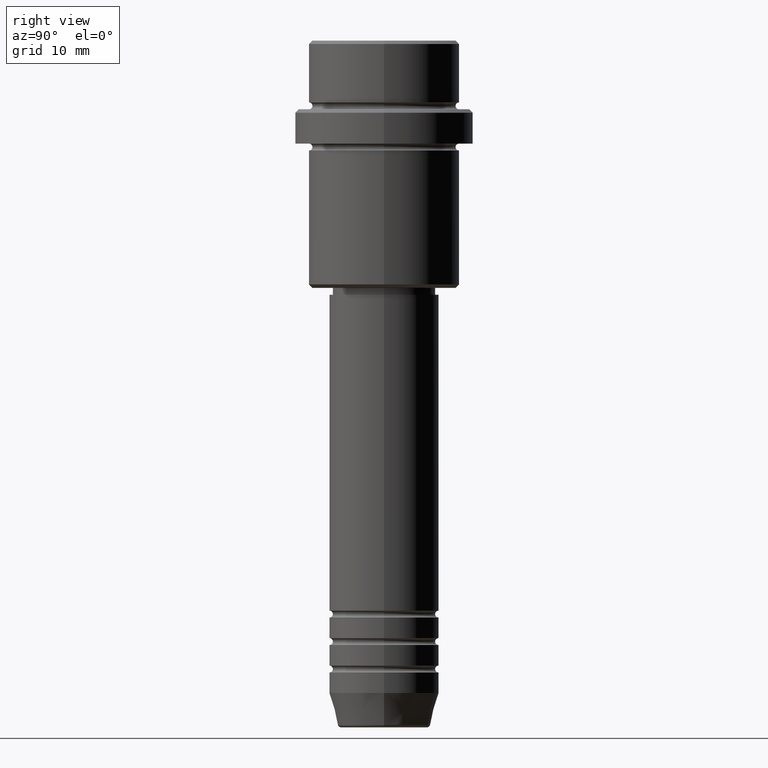
[diagram: clean part render]
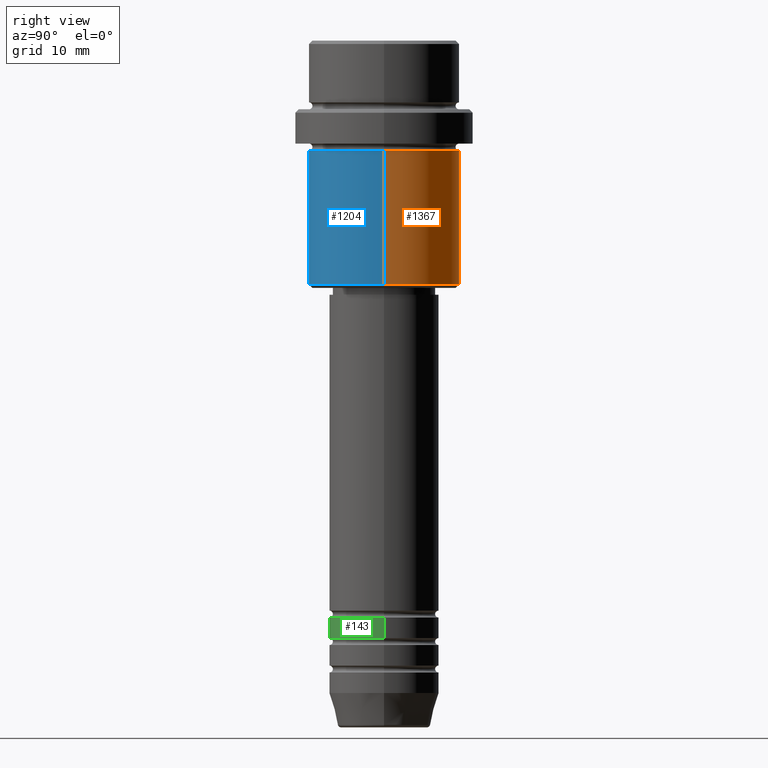
[diagram: same view with three faces highlighted in distinct colors, each labeled with its STEP entity id]
A machine part, right view with three faces highlighted in distinct colors.
Their STEP definitions:

[orange] entity #1367 — the highlighted cylindrical surface (partial cylindrical patch) has radius 11 mm, axis along (-0, -0, 1).
#60 = VERTEX_POINT ( 'NONE', #144 ) ;
#144 = CARTESIAN_POINT ( 'NONE',  ( 10.99999999999997158, 0.000000000000000000, -16.00000000000000355 ) ) ;
#165 = DIRECTION ( 'NONE',  ( 1.000000000000000000, 0.000000000000000000, 0.000000000000000000 ) ) ;
#208 = VERTEX_POINT ( 'NONE', #416 ) ;
#241 = AXIS2_PLACEMENT_3D ( 'NONE', #1363, #390, #1143 ) ;
#270 = DIRECTION ( 'NONE',  ( -1.000000000000000000, 0.000000000000000000, 0.000000000000000000 ) ) ;
#271 = ORIENTED_EDGE ( 'NONE', *, *, #1122, .T. ) ;
#372 = CARTESIAN_POINT ( 'NONE',  ( 10.99999999999998757, 0.000000000000000000, 0.000000000000000000 ) ) ;
#390 = DIRECTION ( 'NONE',  ( -0.000000000000000000, -0.000000000000000000, 1.000000000000000000 ) ) ;
#416 = CARTESIAN_POINT ( 'NONE',  ( 10.99999999999998757, 0.000000000000000000, -35.50000000000000000 ) ) ;
#420 = CIRCLE ( 'NONE', #1134, 10.99999999999998757 ) ;
#444 = ORIENTED_EDGE ( 'NONE', *, *, #1357, .F. ) ;
#457 = VERTEX_POINT ( 'NONE', #691 ) ;
#475 = DIRECTION ( 'NONE',  ( -0.000000000000000000, -0.000000000000000000, 1.000000000000000000 ) ) ;
#691 = CARTESIAN_POINT ( 'NONE',  ( -10.99999999999998757, 1.347111479062086827E-15, -35.50000000000000000 ) ) ;
#700 = VECTOR ( 'NONE', #1018, 1000.000000000000000 ) ;
#702 = CARTESIAN_POINT ( 'NONE',  ( 0.000000000000000000, 0.000000000000000000, 0.000000000000000000 ) ) ;
#704 = CARTESIAN_POINT ( 'NONE',  ( 0.000000000000000000, 0.000000000000000000, -35.50000000000000000 ) ) ;
#708 = ORIENTED_EDGE ( 'NONE', *, *, #808, .F. ) ;
#726 = EDGE_LOOP ( 'NONE', ( #1209, #271, #708, #444 ) ) ;
#784 = CARTESIAN_POINT ( 'NONE',  ( -10.99999999999998757, 1.347111479062086827E-15, 0.000000000000000000 ) ) ;
#808 = EDGE_CURVE ( 'NONE', #60, #1074, #968, .T. ) ;
#810 = CYLINDRICAL_SURFACE ( 'NONE', #972, 10.99999999999998757 ) ;
#861 = EDGE_CURVE ( 'NONE', #208, #457, #420, .T. ) ;
#968 = CIRCLE ( 'NONE', #241, 10.99999999999997158 ) ;
#972 = AXIS2_PLACEMENT_3D ( 'NONE', #702, #1140, #165 ) ;
#1005 = DIRECTION ( 'NONE',  ( -0.000000000000000000, -0.000000000000000000, 1.000000000000000000 ) ) ;
#1018 = DIRECTION ( 'NONE',  ( -0.000000000000000000, -0.000000000000000000, 1.000000000000000000 ) ) ;
#1074 = VERTEX_POINT ( 'NONE', #1337 ) ;
#1122 = EDGE_CURVE ( 'NONE', #457, #1074, #1216, .T. ) ;
#1133 = FACE_OUTER_BOUND ( 'NONE', #726, .T. ) ;
#1134 = AXIS2_PLACEMENT_3D ( 'NONE', #704, #475, #270 ) ;
#1140 = DIRECTION ( 'NONE',  ( -0.000000000000000000, -0.000000000000000000, 1.000000000000000000 ) ) ;
#1143 = DIRECTION ( 'NONE',  ( 1.000000000000000000, 0.000000000000000000, 0.000000000000000000 ) ) ;
#1177 = VECTOR ( 'NONE', #1005, 1000.000000000000000 ) ;
#1209 = ORIENTED_EDGE ( 'NONE', *, *, #861, .T. ) ;
#1216 = LINE ( 'NONE', #784, #1177 ) ;
#1246 = LINE ( 'NONE', #372, #700 ) ;
#1337 = CARTESIAN_POINT ( 'NONE',  ( -10.99999999999997158, 1.347111479062085841E-15, -16.00000000000000355 ) ) ;
#1357 = EDGE_CURVE ( 'NONE', #208, #60, #1246, .T. ) ;
#1363 = CARTESIAN_POINT ( 'NONE',  ( 0.000000000000000000, 0.000000000000000000, -16.00000000000000355 ) ) ;
#1367 = ADVANCED_FACE ( 'NONE', ( #1133 ), #810, .T. ) ;

[blue] entity #1204 — the highlighted cylindrical surface (partial cylindrical patch) has radius 11 mm, axis along (-0, -0, 1).
#25 = EDGE_CURVE ( 'NONE', #1074, #60, #1375, .T. ) ;
#60 = VERTEX_POINT ( 'NONE', #144 ) ;
#76 = AXIS2_PLACEMENT_3D ( 'NONE', #117, #1194, #1094 ) ;
#115 = EDGE_LOOP ( 'NONE', ( #1395, #492, #870, #258 ) ) ;
#117 = CARTESIAN_POINT ( 'NONE',  ( 0.000000000000000000, 0.000000000000000000, -16.00000000000000355 ) ) ;
#144 = CARTESIAN_POINT ( 'NONE',  ( 10.99999999999997158, 0.000000000000000000, -16.00000000000000355 ) ) ;
#169 = DIRECTION ( 'NONE',  ( 1.000000000000000000, 0.000000000000000000, 0.000000000000000000 ) ) ;
#208 = VERTEX_POINT ( 'NONE', #416 ) ;
#258 = ORIENTED_EDGE ( 'NONE', *, *, #25, .F. ) ;
#266 = DIRECTION ( 'NONE',  ( -0.000000000000000000, -0.000000000000000000, 1.000000000000000000 ) ) ;
#372 = CARTESIAN_POINT ( 'NONE',  ( 10.99999999999998757, 0.000000000000000000, 0.000000000000000000 ) ) ;
#416 = CARTESIAN_POINT ( 'NONE',  ( 10.99999999999998757, 0.000000000000000000, -35.50000000000000000 ) ) ;
#457 = VERTEX_POINT ( 'NONE', #691 ) ;
#492 = ORIENTED_EDGE ( 'NONE', *, *, #938, .T. ) ;
#500 = CARTESIAN_POINT ( 'NONE',  ( 0.000000000000000000, 0.000000000000000000, 0.000000000000000000 ) ) ;
#600 = FACE_OUTER_BOUND ( 'NONE', #115, .T. ) ;
#691 = CARTESIAN_POINT ( 'NONE',  ( -10.99999999999998757, 1.347111479062086827E-15, -35.50000000000000000 ) ) ;
#700 = VECTOR ( 'NONE', #1018, 1000.000000000000000 ) ;
#784 = CARTESIAN_POINT ( 'NONE',  ( -10.99999999999998757, 1.347111479062086827E-15, 0.000000000000000000 ) ) ;
#835 = AXIS2_PLACEMENT_3D ( 'NONE', #500, #266, #169 ) ;
#845 = CARTESIAN_POINT ( 'NONE',  ( 0.000000000000000000, 0.000000000000000000, -35.50000000000000000 ) ) ;
#870 = ORIENTED_EDGE ( 'NONE', *, *, #1357, .T. ) ;
#921 = AXIS2_PLACEMENT_3D ( 'NONE', #845, #1079, #964 ) ;
#938 = EDGE_CURVE ( 'NONE', #457, #208, #1247, .T. ) ;
#964 = DIRECTION ( 'NONE',  ( -1.000000000000000000, 0.000000000000000000, 0.000000000000000000 ) ) ;
#1005 = DIRECTION ( 'NONE',  ( -0.000000000000000000, -0.000000000000000000, 1.000000000000000000 ) ) ;
#1018 = DIRECTION ( 'NONE',  ( -0.000000000000000000, -0.000000000000000000, 1.000000000000000000 ) ) ;
#1074 = VERTEX_POINT ( 'NONE', #1337 ) ;
#1079 = DIRECTION ( 'NONE',  ( -0.000000000000000000, -0.000000000000000000, 1.000000000000000000 ) ) ;
#1094 = DIRECTION ( 'NONE',  ( 1.000000000000000000, 0.000000000000000000, 0.000000000000000000 ) ) ;
#1122 = EDGE_CURVE ( 'NONE', #457, #1074, #1216, .T. ) ;
#1151 = CYLINDRICAL_SURFACE ( 'NONE', #835, 10.99999999999998757 ) ;
#1177 = VECTOR ( 'NONE', #1005, 1000.000000000000000 ) ;
#1194 = DIRECTION ( 'NONE',  ( -0.000000000000000000, -0.000000000000000000, 1.000000000000000000 ) ) ;
#1204 = ADVANCED_FACE ( 'NONE', ( #600 ), #1151, .T. ) ;
#1216 = LINE ( 'NONE', #784, #1177 ) ;
#1246 = LINE ( 'NONE', #372, #700 ) ;
#1247 = CIRCLE ( 'NONE', #921, 10.99999999999998757 ) ;
#1337 = CARTESIAN_POINT ( 'NONE',  ( -10.99999999999997158, 1.347111479062085841E-15, -16.00000000000000355 ) ) ;
#1357 = EDGE_CURVE ( 'NONE', #208, #60, #1246, .T. ) ;
#1375 = CIRCLE ( 'NONE', #76, 10.99999999999997158 ) ;
#1395 = ORIENTED_EDGE ( 'NONE', *, *, #1122, .F. ) ;

[green] entity #143 — the highlighted cylindrical surface (partial cylindrical patch) has radius 8 mm, axis along (-0, -0, 1).
#21 = DIRECTION ( 'NONE',  ( 1.000000000000000000, 0.000000000000000000, 0.000000000000000000 ) ) ;
#24 = ORIENTED_EDGE ( 'NONE', *, *, #642, .F. ) ;
#35 = CARTESIAN_POINT ( 'NONE',  ( 0.000000000000000000, 0.000000000000000000, -86.99999999999988631 ) ) ;
#55 = AXIS2_PLACEMENT_3D ( 'NONE', #831, #722, #1163 ) ;
#68 = CARTESIAN_POINT ( 'NONE',  ( -8.000000000000000000, 9.797174393178825657E-16, 0.000000000000000000 ) ) ;
#84 = VERTEX_POINT ( 'NONE', #662 ) ;
#123 = VERTEX_POINT ( 'NONE', #211 ) ;
#142 = VERTEX_POINT ( 'NONE', #1202 ) ;
#143 = ADVANCED_FACE ( 'NONE', ( #1097 ), #506, .T. ) ;
#175 = ORIENTED_EDGE ( 'NONE', *, *, #981, .F. ) ;
#207 = LINE ( 'NONE', #68, #717 ) ;
#211 = CARTESIAN_POINT ( 'NONE',  ( -8.000000000000000000, 9.797174393178825657E-16, -83.99999999999988631 ) ) ;
#259 = VECTOR ( 'NONE', #929, 1000.000000000000000 ) ;
#262 = LINE ( 'NONE', #387, #259 ) ;
#340 = ORIENTED_EDGE ( 'NONE', *, *, #493, .T. ) ;
#350 = DIRECTION ( 'NONE',  ( -0.000000000000000000, -0.000000000000000000, 1.000000000000000000 ) ) ;
#376 = EDGE_CURVE ( 'NONE', #142, #84, #1340, .T. ) ;
#387 = CARTESIAN_POINT ( 'NONE',  ( 8.000000000000000000, 0.000000000000000000, 0.000000000000000000 ) ) ;
#477 = DIRECTION ( 'NONE',  ( 1.000000000000000000, 0.000000000000000000, 0.000000000000000000 ) ) ;
#493 = EDGE_CURVE ( 'NONE', #84, #1036, #262, .T. ) ;
#506 = CYLINDRICAL_SURFACE ( 'NONE', #560, 8.000000000000000000 ) ;
#560 = AXIS2_PLACEMENT_3D ( 'NONE', #887, #350, #477 ) ;
#642 = EDGE_CURVE ( 'NONE', #123, #1036, #677, .T. ) ;
#662 = CARTESIAN_POINT ( 'NONE',  ( 8.000000000000000000, 0.000000000000000000, -86.99999999999988631 ) ) ;
#677 = CIRCLE ( 'NONE', #55, 8.000000000000000000 ) ;
#695 = AXIS2_PLACEMENT_3D ( 'NONE', #35, #1001, #21 ) ;
#717 = VECTOR ( 'NONE', #1280, 1000.000000000000000 ) ;
#722 = DIRECTION ( 'NONE',  ( -0.000000000000000000, -0.000000000000000000, 1.000000000000000000 ) ) ;
#831 = CARTESIAN_POINT ( 'NONE',  ( 0.000000000000000000, 0.000000000000000000, -83.99999999999988631 ) ) ;
#853 = CARTESIAN_POINT ( 'NONE',  ( 8.000000000000000000, 0.000000000000000000, -83.99999999999988631 ) ) ;
#887 = CARTESIAN_POINT ( 'NONE',  ( 0.000000000000000000, 0.000000000000000000, 0.000000000000000000 ) ) ;
#929 = DIRECTION ( 'NONE',  ( -0.000000000000000000, -0.000000000000000000, 1.000000000000000000 ) ) ;
#981 = EDGE_CURVE ( 'NONE', #142, #123, #207, .T. ) ;
#1001 = DIRECTION ( 'NONE',  ( -0.000000000000000000, -0.000000000000000000, 1.000000000000000000 ) ) ;
#1036 = VERTEX_POINT ( 'NONE', #853 ) ;
#1097 = FACE_OUTER_BOUND ( 'NONE', #1330, .T. ) ;
#1163 = DIRECTION ( 'NONE',  ( 1.000000000000000000, 0.000000000000000000, 0.000000000000000000 ) ) ;
#1188 = ORIENTED_EDGE ( 'NONE', *, *, #376, .T. ) ;
#1202 = CARTESIAN_POINT ( 'NONE',  ( -8.000000000000000000, 9.797174393178825657E-16, -86.99999999999988631 ) ) ;
#1280 = DIRECTION ( 'NONE',  ( -0.000000000000000000, -0.000000000000000000, 1.000000000000000000 ) ) ;
#1330 = EDGE_LOOP ( 'NONE', ( #175, #1188, #340, #24 ) ) ;
#1340 = CIRCLE ( 'NONE', #695, 8.000000000000000000 ) ;